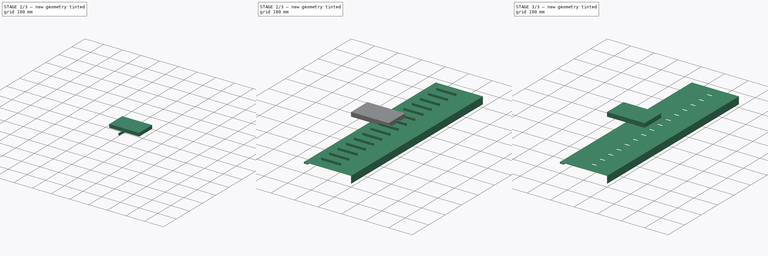
[diagram: build sequence overview — one tinted view per stage of 3, left to right]
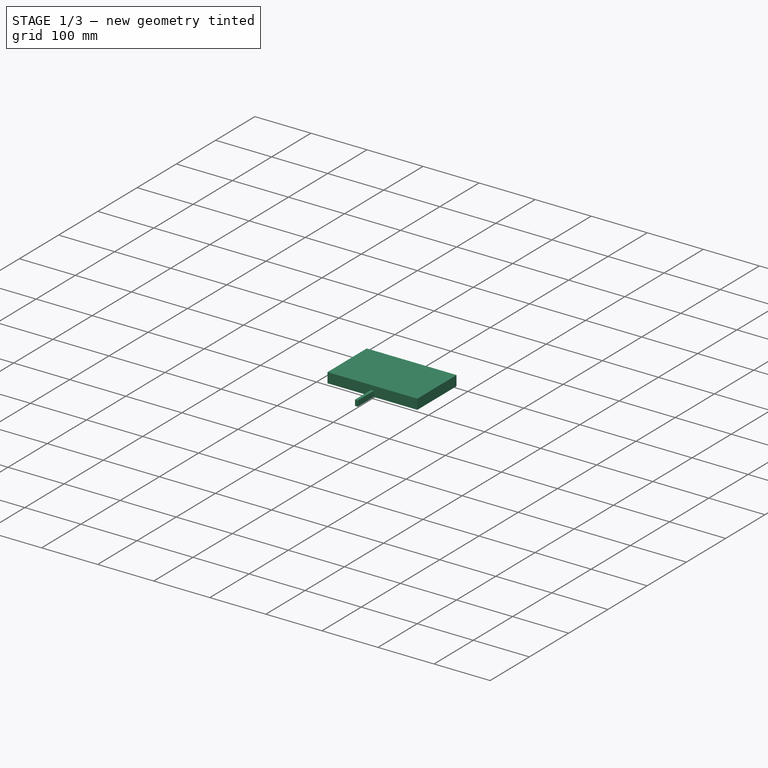
[diagram: stage 1 of 3 — iso view after this stage's code; geometry added in this stage tinted green]
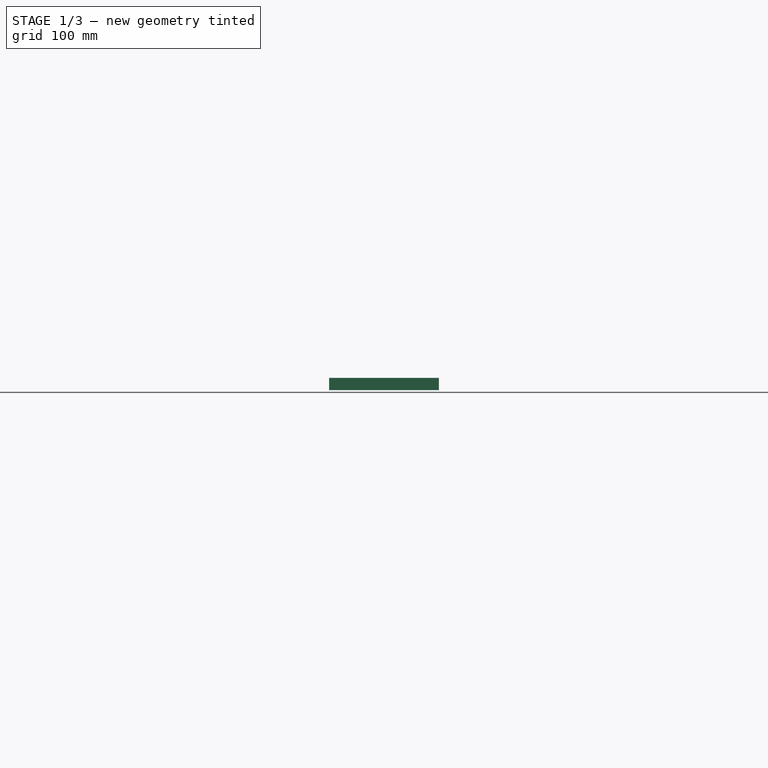
[diagram: stage 1 of 3 — front view after this stage's code; geometry added in this stage tinted green]
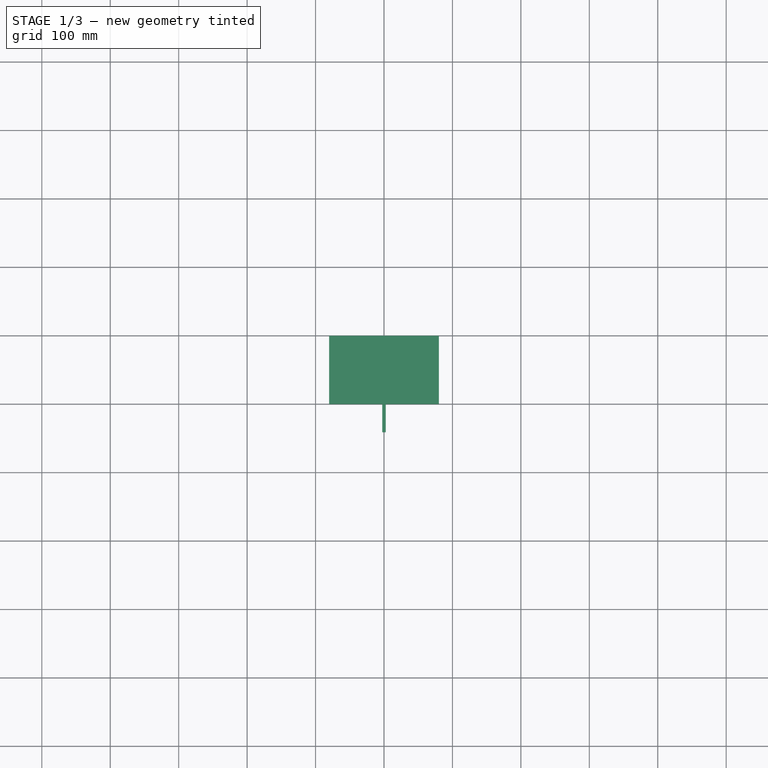
[diagram: stage 1 of 3 — top view after this stage's code; geometry added in this stage tinted green]
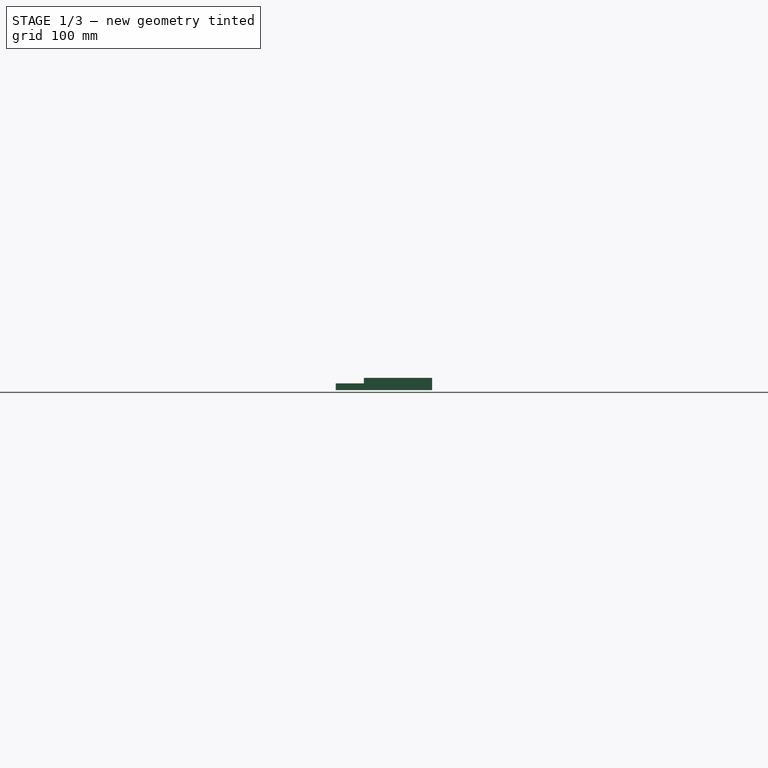
[diagram: stage 1 of 3 — right view after this stage's code; geometry added in this stage tinted green]
FCSTD DOCUMENT  (FreeCAD 0.22R37100 (Git))
Label: cutting4_base
License: All rights reserved
LicenseURL: http://en.wikipedia.org/wiki/All_rights_reserved
objects: PartDesign::Body×5, Sketcher::SketchObject×4, Part::FeaturePython×4, PartDesign::SubShapeBinder×2, PartDesign::FeaturePython×2, Part::Extrusion×1, Part::MultiFuse×1, PartDesign::Boolean×1, PartDesign::Pad×1, App::DocumentObjectGroup×1
note: 22 computed .brp shape members not serialized (recipe doc carries the construction recipe); baked Part::Feature solids carry a one-line shape summary decoded from their .brp

FEATURE [Sketcher::SketchObject] Sketch002
  FullyConstrained = true
  sketch-geometry (5):
    g0: LineSegment StartX=-2.5 StartY=-41 StartZ=0 EndX=2.5 EndY=-41 EndZ=0
    g1: LineSegment StartX=2.5 StartY=-41 StartZ=0 EndX=2.5 EndY=41 EndZ=0
    g2: LineSegment StartX=2.5 StartY=41 StartZ=0 EndX=-2.5 EndY=41 EndZ=0
    g3: LineSegment StartX=-2.5 StartY=41 StartZ=0 EndX=-2.5 EndY=-41 EndZ=0
    g4: GeomPoint X=0 Y=0 Z=0
  constraints (12):
    c: Coincident(g0,g1)
    c: Coincident(g1,g2)
    c: Coincident(g2,g3)
    c: Coincident(g3,g0)
    c: Horizontal(g0)
    c: Horizontal(g2)
    c: Vertical(g1)
    c: Vertical(g3)
    c: Symmetric(g2,g0,g4)
    c: Coincident(g4,g-1)
    c: DistanceX(g0,g1) = 5
    c: DistanceY(g0,g1) = 82
FEATURE [Part::Extrusion] Extrude
  Base = -> Sketch002
  Dir = (0,0,1)
  DirMode = 2
  FaceMakerClass = Part::FaceMakerBullseye
  LengthFwd = 10
  LengthRev = 0
  Solid = true
  Symmetric = false
FEATURE [PartDesign::Body] Body001
  Group = -> [Binder001,BaseBend001,Boolean]
  Origin = -> Origin001
  Tip = -> Boolean
FEATURE [PartDesign::Body] Body003
  Origin = -> Origin003
FEATURE [Sketcher::SketchObject] Sketch003
  AttachmentSupport = -> [XY_Plane004]
  FullyConstrained = false
  MapMode = 5
  sketch-geometry (5):
    g0: LineSegment StartX=-80.1309 StartY=99.8179 StartZ=0 EndX=-80.1309 EndY=0 EndZ=0
    g1: LineSegment StartX=-80.1309 StartY=0 StartZ=0 EndX=80.1309 EndY=0 EndZ=0
    g2: LineSegment StartX=80.1309 StartY=0 StartZ=0 EndX=80.1309 EndY=99.8179 EndZ=0
    g3: LineSegment StartX=80.1309 StartY=99.8179 StartZ=0 EndX=-80.1309 EndY=99.8179 EndZ=0
    g4: GeomPoint X=0 Y=49.909 Z=0
  constraints (11):
    c: Coincident(g0,g1)
    c: Coincident(g1,g2)
    c: Coincident(g2,g3)
    c: Coincident(g3,g0)
    c: Vertical(g0)
    c: Vertical(g2)
    c: Horizontal(g1)
    c: Horizontal(g3)
    c: Symmetric(g2,g0,g4)
    c: PointOnObject(g4,g-2)
    c: PointOnObject(g1,g-1)
FEATURE [PartDesign::Pad] Pad
  Direction = (0,0,1)
  Length = 18
  Length2 = 10
  Profile = -> Sketch003
  ReferenceAxis = -> Sketch003 [N_Axis]
  Suppressed = false
  Type = 0
FEATURE [PartDesign::Body] Body004
  Group = -> [Sketch003,Pad]
  Origin = -> Origin004
  Tip = -> Pad
FEATURE [App::DocumentObjectGroup] Group  label="parts"
  Group = -> [Body,Body001,Body003,Body004]
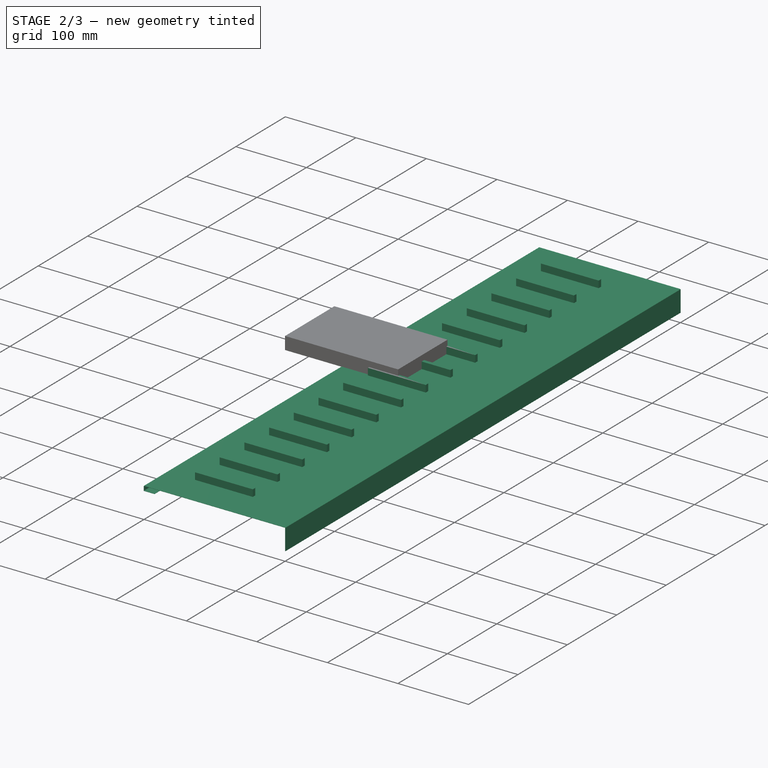
[diagram: stage 2 of 3 — iso view after this stage's code; geometry added in this stage tinted green]
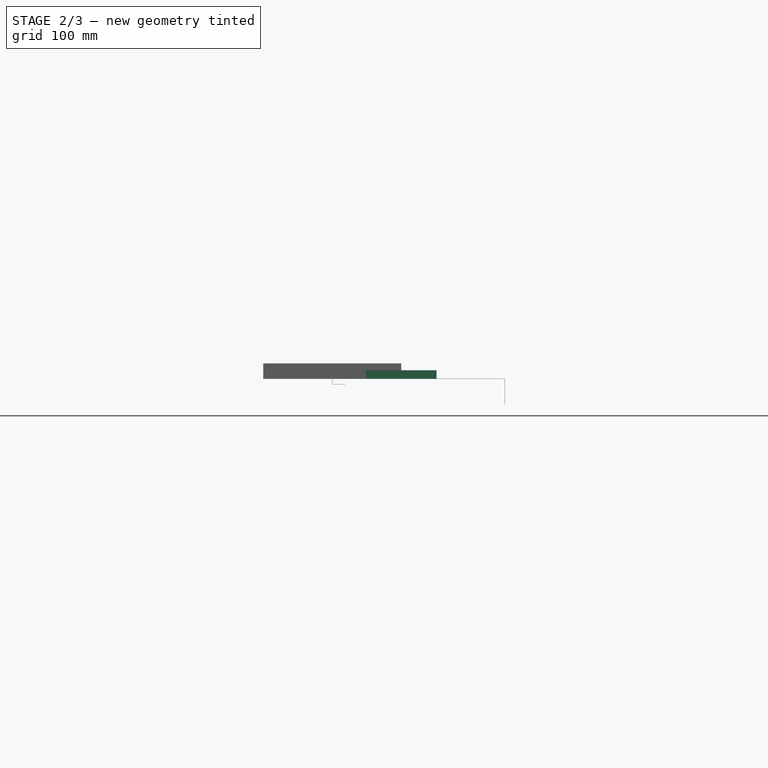
[diagram: stage 2 of 3 — front view after this stage's code; geometry added in this stage tinted green]
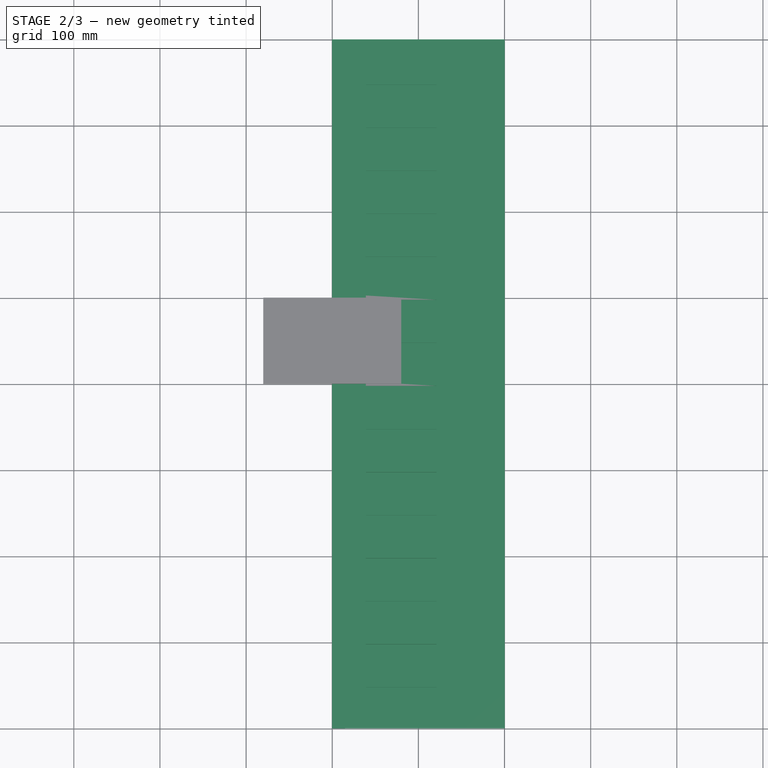
[diagram: stage 2 of 3 — top view after this stage's code; geometry added in this stage tinted green]
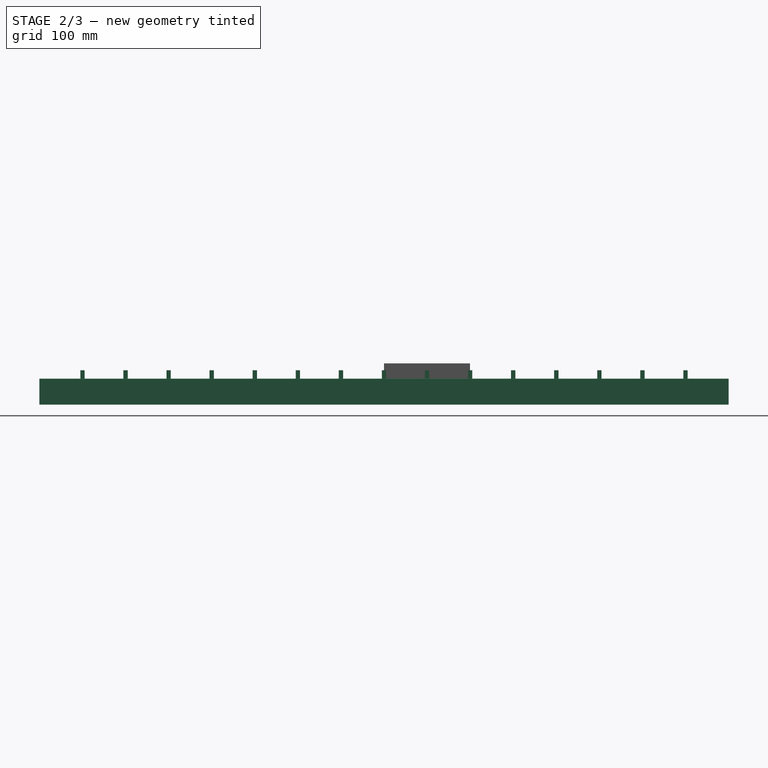
[diagram: stage 2 of 3 — right view after this stage's code; geometry added in this stage tinted green]
FEATURE [PartDesign::Body] Body
  Group = -> [Binder,BaseBend]
  Origin = -> Origin
  Tip = -> BaseBend
FEATURE [Sketcher::SketchObject] Sketch001
  FullyConstrained = true
  sketch-geometry (4):
    g0: LineSegment StartX=200 StartY=0 StartZ=0 EndX=0 EndY=0 EndZ=0
    g1: LineSegment StartX=0 StartY=0 StartZ=0 EndX=0 EndY=-6 EndZ=0
    g2: LineSegment StartX=0 StartY=-6 StartZ=0 EndX=15 EndY=-6 EndZ=0
    g3: LineSegment StartX=200 StartY=0 StartZ=0 EndX=200 EndY=-30 EndZ=0
  constraints (12):
    c: PointOnObject(g0,g-1)
    c: Coincident(g0,g-1)
    c: Coincident(g0,g1)
    c: PointOnObject(g1,g-2)
    c: Coincident(g1,g2)
    c: Horizontal(g2)
    c: DistanceX(g2) = 15
    c: DistanceY(g2) = -6
    c: DistanceX(g0,g0) = 200
    c: Coincident(g3,g0)
    c: Vertical(g3)
    c: DistanceY(g3,g3) = 30
FEATURE [PartDesign::SubShapeBinder] Binder001
  BindCopyOnChange = 0
  BindMode = 0
  ClaimChildren = true
  Context = -> Body001 [Binder001.]
  Fuse = false
  MakeFace = true
  OffsetFill = false
  OffsetIntersection = false
  OffsetJoinType = 0
  OffsetOpenResult = false
  PartialLoad = false
  Placement = pos=(0,0,0) rot=(1,0,0;1.5708rad)
  Relative = false
  Support = -> [Sketch001]
  _Version = 2
FEATURE [PartDesign::FeaturePython] BaseBend001  # WARN: FeaturePython — macro-defined, semantics opaque (R4)
  BendSide = 0
  BendSketch = -> Binder001
  MidPlane = true
  Reverse = false
  Suppressed = false
  length = 800
  radius = 0.1
  thickness = 0.3
FEATURE [Part::FeaturePython] LinearArray  # WARN: FeaturePython — macro-defined, semantics opaque (R4)
  Alignment = 0
  CellStart = A1
  Count = 15
  Dir = (1,0,0)
  DirIsDriven = true
  DistributionLaw = 0
  DrivenProperty = 1
  EndInclusive = true
  ExposePlacement = false
  GeneratorMode = 1
  MarkerShape = 1
  MarkerSize = 0
  NumElements = 15
  OrientMode = 1
  Placement = pos=(-350,0,0) rot=(0,0,1;0rad)
  Point = (0,0,0)
  PointIsDriven = true
  Reverse = false
  SpanEnd = 700
  SpanStart = 0
  Step = 50
  Type = lattice2LinearArray.LinearArray
  VSGVersion = 1
  Values = 0.0 | 50.0 | 100.0 | 150.0 | 200.0 | 250.0 | 300.0 | 350.0 | 400.0 | 450.0 | 500.0 | 550.0 | 600.0 | 650.0 | 700.0
  ValuesSource = 2
  isLattice = 1
  expr: .Placement.Base.x = -SpanEnd / 2
  expr: SpanEnd = Step * (Count - 1)
FEATURE [Part::FeaturePython] Placment  # WARN: FeaturePython — macro-defined, semantics opaque (R4)
  AttacherType = Attacher::AttachEngine3D
  ExposePlacement = true
  MarkerShape = 1
  MarkerSize = 50
  NumElements = 1
  Placement = pos=(80,0,0) rot=(0,0,1;1.5708rad)
  Type = lattice2AttachablePlacement.AttachablePlacement
  isLattice = 1
FEATURE [Part::FeaturePython] Populate  label="Populate Placment with LinearArray"  # WARN: FeaturePython — macro-defined, semantics opaque (R4)
  Copying = 0
  ExposePlacement = false
  MarkerShape = 1
  MarkerSize = 0
  NumElements = 15
  Object = -> LinearArray
  OutputCompounding = 0
  PlacementsTo = -> Placment
  Referencing = 0
  Type = lattice2PopulateCopies.LatticePopulateCopies
  isLattice = 1
FEATURE [Part::FeaturePython] Populate001  label="Populate Populate Placment with LinearArray with Extrude"  # WARN: FeaturePython — macro-defined, semantics opaque (R4)
  Copying = 0
  ExposePlacement = false
  MarkerShape = 1
  MarkerSize = 0
  NumElements = 0
  Object = -> Extrude
  OutputCompounding = 1
  PlacementsTo = -> Populate
  Referencing = 0
  Type = lattice2PopulateCopies.LatticePopulateCopies
  isLattice = 0
FEATURE [PartDesign::Body] Body002  label="dummy_body"
  Origin = -> Origin002
FEATURE [Part::MultiFuse] Fusion
  Shapes = -> [Populate001]
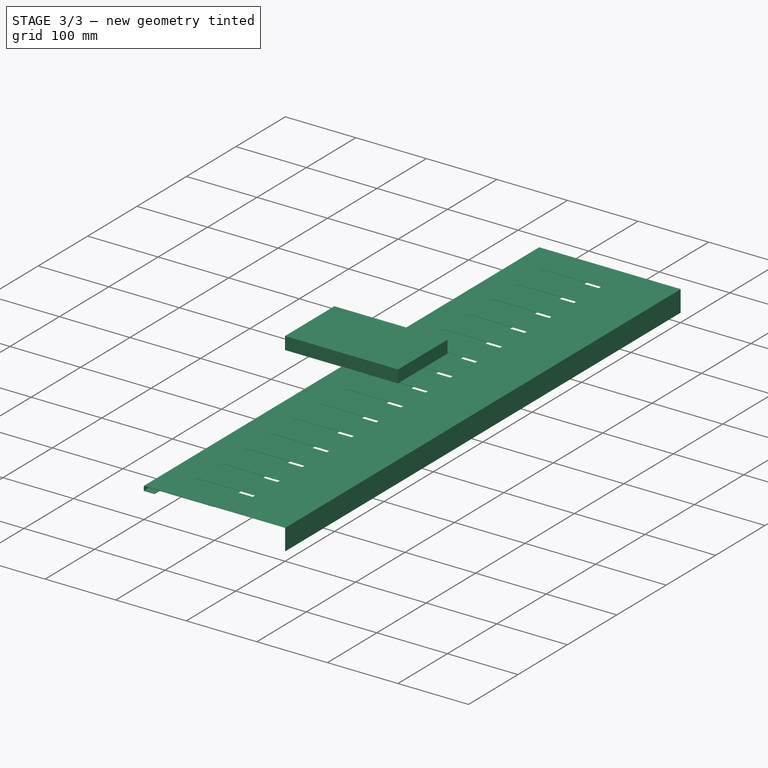
[diagram: stage 3 of 3 — iso view after this stage's code; geometry added in this stage tinted green]
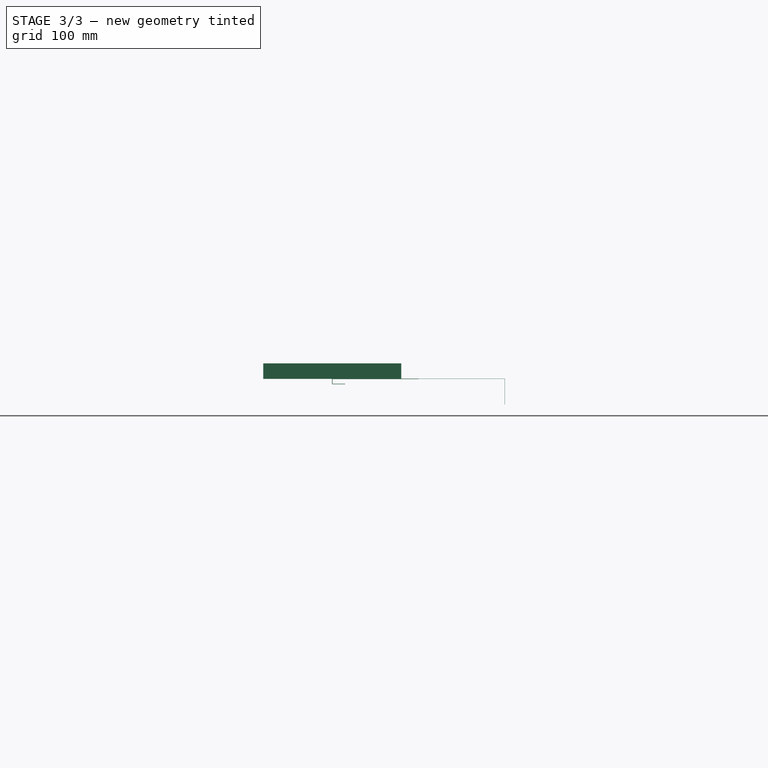
[diagram: stage 3 of 3 — front view after this stage's code; geometry added in this stage tinted green]
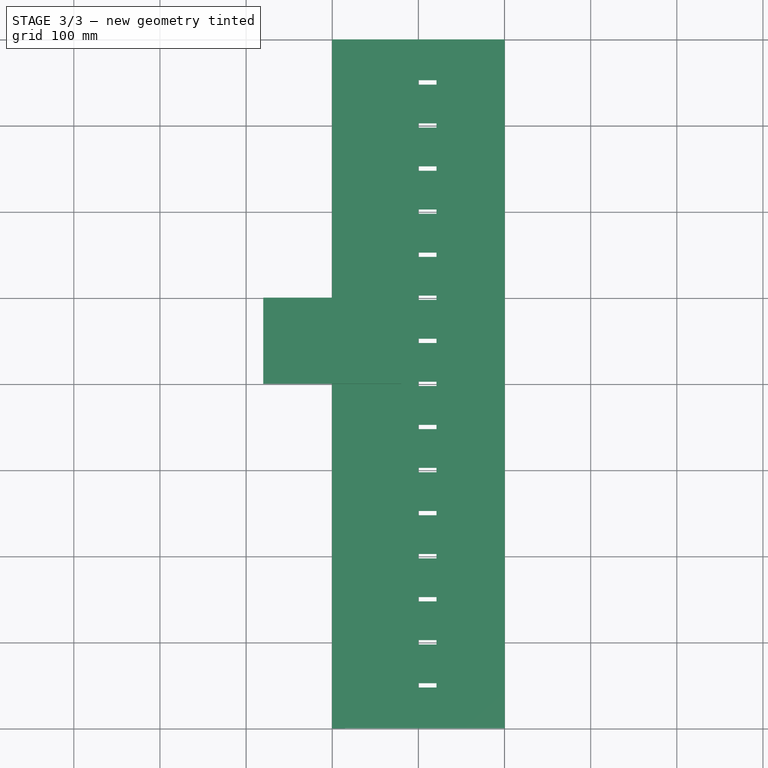
[diagram: stage 3 of 3 — top view after this stage's code; geometry added in this stage tinted green]
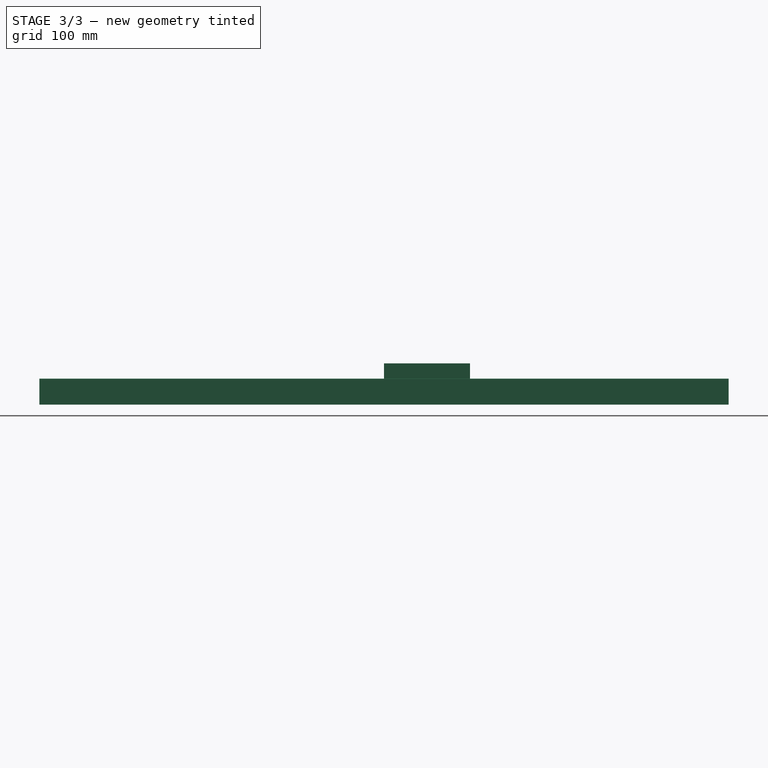
[diagram: stage 3 of 3 — right view after this stage's code; geometry added in this stage tinted green]
FEATURE [Sketcher::SketchObject] Sketch
  FullyConstrained = true
  sketch-geometry (3):
    g0: LineSegment StartX=100 StartY=0 StartZ=0 EndX=0 EndY=0 EndZ=0
    g1: LineSegment StartX=0 StartY=0 StartZ=0 EndX=0 EndY=-6 EndZ=0
    g2: LineSegment StartX=0 StartY=-6 StartZ=0 EndX=15 EndY=-6 EndZ=0
  constraints (9):
    c: PointOnObject(g0,g-1)
    c: Coincident(g0,g-1)
    c: Coincident(g0,g1)
    c: PointOnObject(g1,g-2)
    c: Coincident(g1,g2)
    c: Horizontal(g2)
    c: DistanceX(g2) = 15
    c: DistanceY(g2) = -6
    c: DistanceX(g0,g0) = 100
FEATURE [PartDesign::SubShapeBinder] Binder
  BindCopyOnChange = 0
  BindMode = 0
  ClaimChildren = true
  Context = -> Body [Binder.]
  Fuse = false
  MakeFace = true
  OffsetFill = false
  OffsetIntersection = false
  OffsetJoinType = 0
  OffsetOpenResult = false
  PartialLoad = false
  Placement = pos=(0,0,0) rot=(1,0,0;1.5708rad)
  Relative = false
  Support = -> [Sketch]
  _Version = 2
FEATURE [PartDesign::FeaturePython] BaseBend  # WARN: FeaturePython — macro-defined, semantics opaque (R4)
  BendSide = 1
  BendSketch = -> Binder
  MidPlane = true
  Reverse = false
  Suppressed = false
  length = 800
  radius = 0.1
  thickness = 0.3
FEATURE [PartDesign::Boolean] Boolean
  BaseFeature = -> BaseBend001
  Group = -> [Fusion]
  Suppressed = false
  Type = 1
  UsePlacement = true
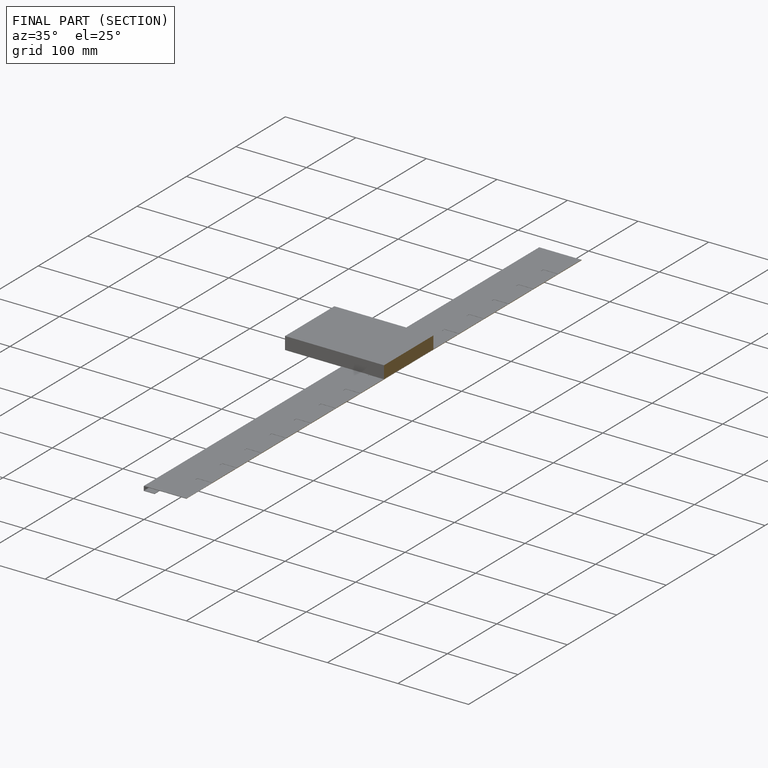
[diagram: finished part — half-section view (interior)]
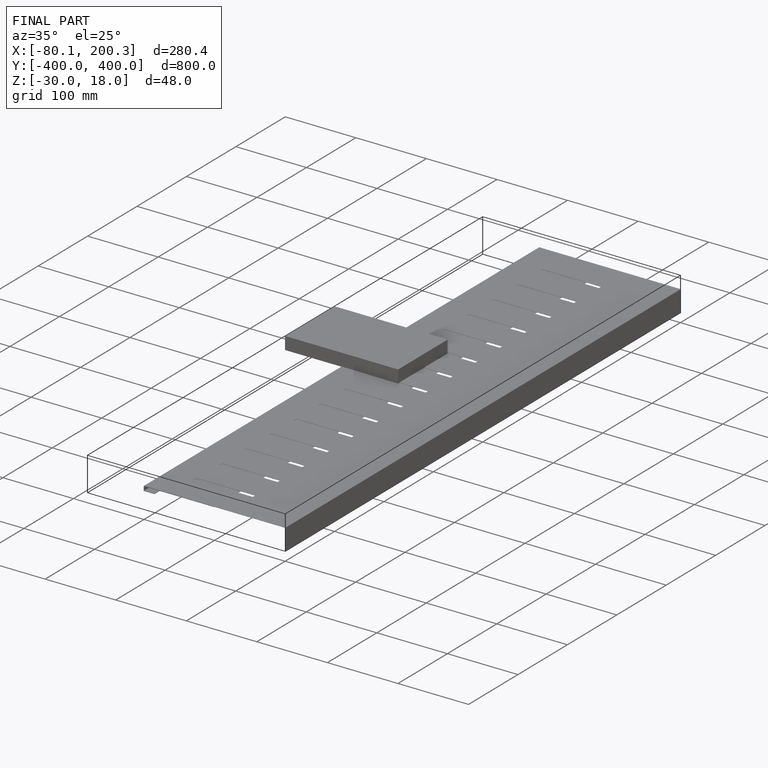
[diagram: finished part — iso view with bounding-box wireframe]
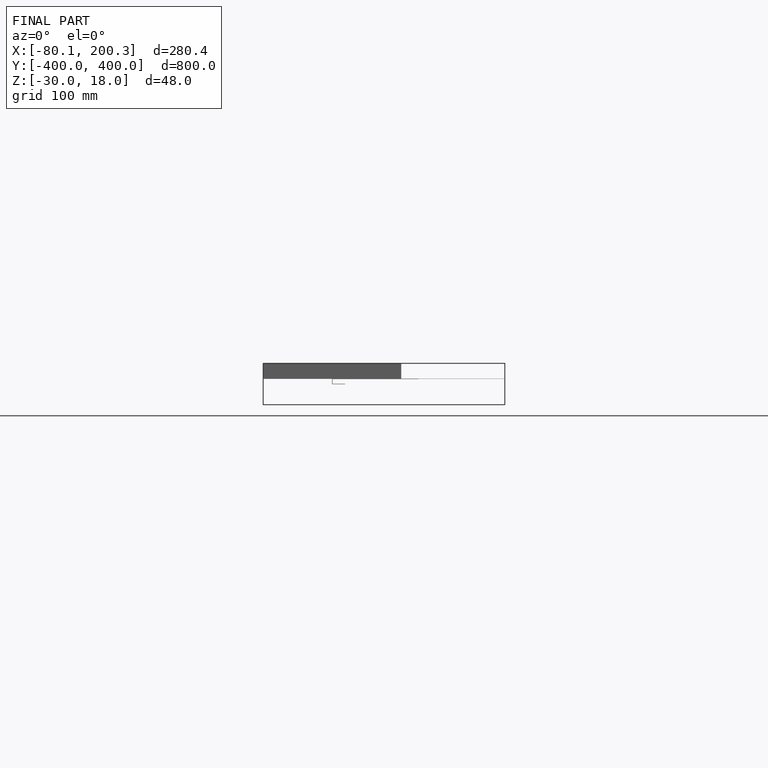
[diagram: finished part — front view with bounding-box wireframe]
